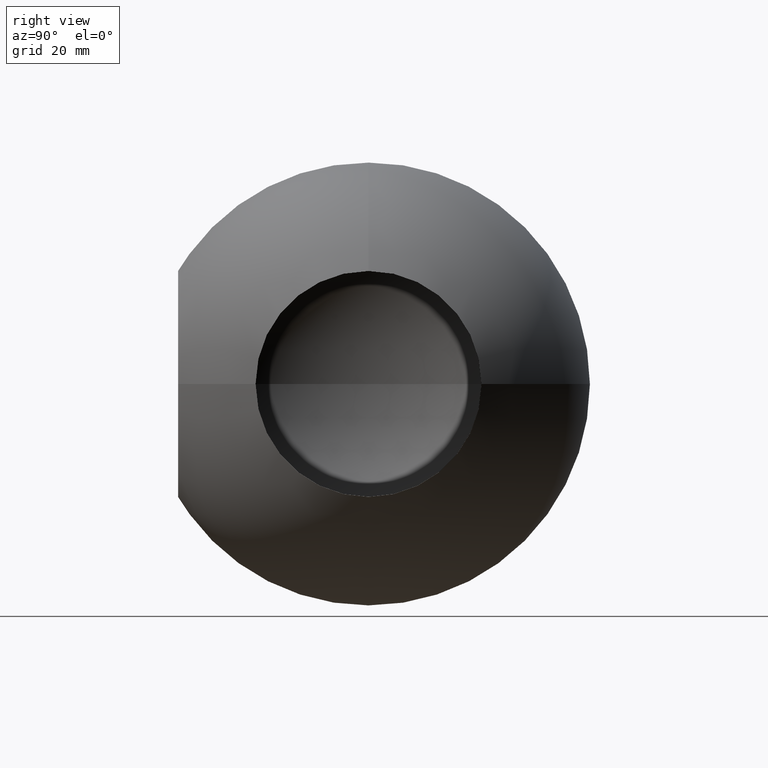
[diagram: clean part render]
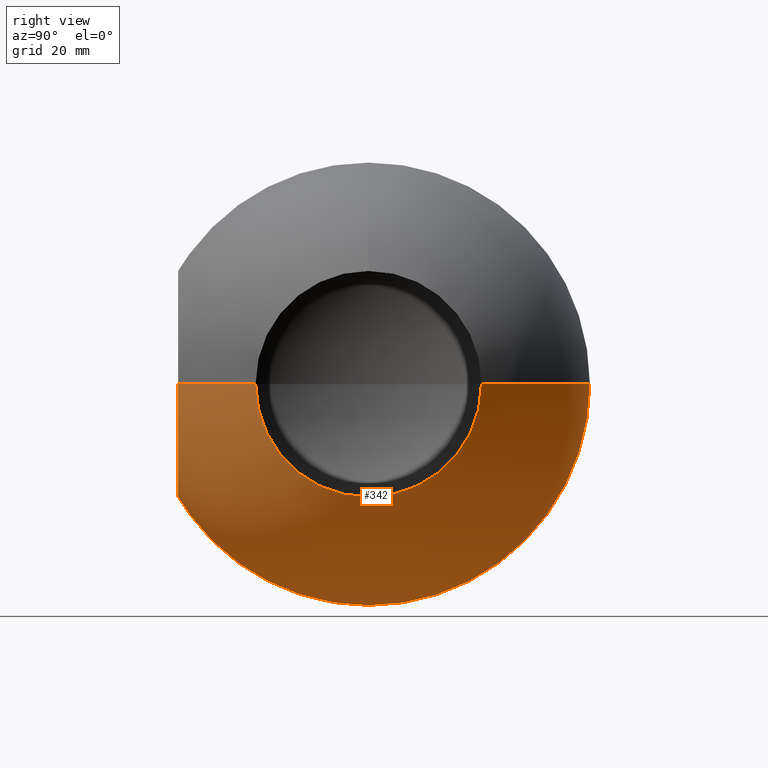
[diagram: same view with one face highlighted and labeled with its STEP entity id]
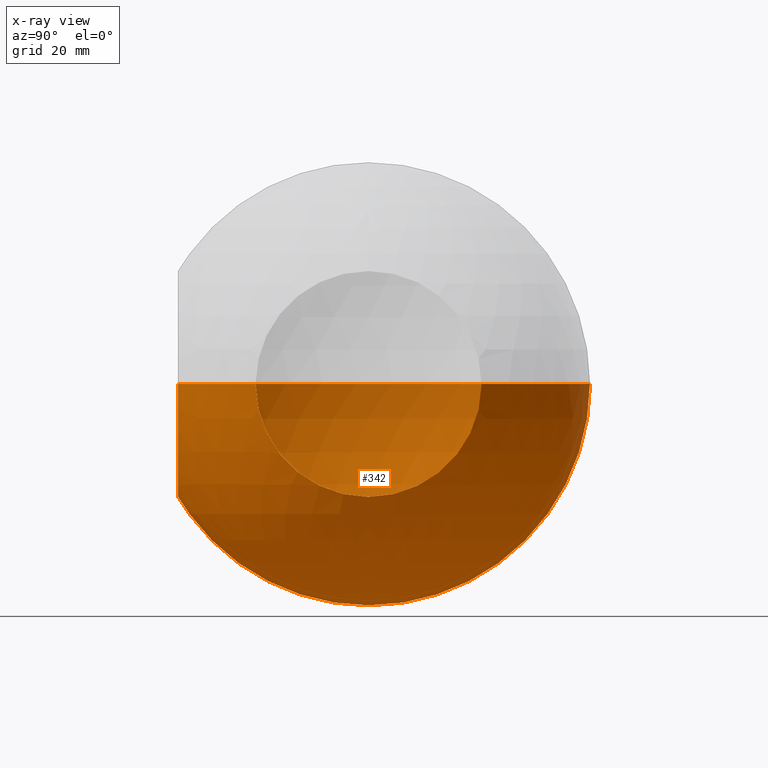
[diagram: x-ray of the same camera — body ghosted, the highlighted face saturated]
A machine part, right view. The second image highlights one B-rep face of the part: STEP entity #342.
The next image is the same camera in x-ray: the body ghosted, the highlighted face saturated — about 0% of this face is hidden behind the body in this view.
In plain terms, the highlighted spherical surface has radius 50 mm.
Its self-contained STEP definition (entity closure, byte-faithful):
#6 = EDGE_CURVE ( 'NONE', #330, #152, #119, .T. ) ;
#22 = DIRECTION ( 'NONE',  ( -1.000000000000000000, 0.0000000000000000000, -1.224646799147353200E-016 ) ) ;
#32 = VERTEX_POINT ( 'NONE', #214 ) ;
#42 = VERTEX_POINT ( 'NONE', #296 ) ;
#46 = EDGE_CURVE ( 'NONE', #32, #42, #165, .T. ) ;
#51 = DIRECTION ( 'NONE',  ( 1.000000000000000000, -0.0000000000000000000, -0.0000000000000000000 ) ) ;
#63 = AXIS2_PLACEMENT_3D ( 'NONE', #149, #90, #283 ) ;
#66 = FACE_OUTER_BOUND ( 'NONE', #345, .T. ) ;
#68 = SPHERICAL_SURFACE ( 'NONE', #268, 50.00000000000000000 ) ;
#71 = CARTESIAN_POINT ( 'NONE',  ( 0.0000000000000000000, -43.00872004605578500, -25.50000000000000000 ) ) ;
#78 = DIRECTION ( 'NONE',  ( 0.0000000000000000000, 1.000000000000000000, 0.0000000000000000000 ) ) ;
#79 = CARTESIAN_POINT ( 'NONE',  ( 43.00872004605578500, -1.387778780781445700E-014, -25.50000000000000000 ) ) ;
#86 = DIRECTION ( 'NONE',  ( 0.0000000000000000000, 0.0000000000000000000, -1.000000000000000000 ) ) ;
#90 = DIRECTION ( 'NONE',  ( 0.0000000000000000000, 0.0000000000000000000, 1.000000000000000000 ) ) ;
#92 = CIRCLE ( 'NONE', #262, 25.50000000000000000 ) ;
#94 = VERTEX_POINT ( 'NONE', #353 ) ;
#96 = CIRCLE ( 'NONE', #295, 25.50000000000000000 ) ;
#100 = DIRECTION ( 'NONE',  ( 1.000000000000000000, -0.0000000000000000000, -0.0000000000000000000 ) ) ;
#105 = CIRCLE ( 'NONE', #63, 50.00000000000000000 ) ;
#110 = DIRECTION ( 'NONE',  ( 0.0000000000000000000, 0.0000000000000000000, 1.000000000000000000 ) ) ;
#114 = ORIENTED_EDGE ( 'NONE', *, *, #348, .T. ) ;
#119 = CIRCLE ( 'NONE', #294, 25.50000000000000000 ) ;
#127 = ORIENTED_EDGE ( 'NONE', *, *, #339, .T. ) ;
#131 = AXIS2_PLACEMENT_3D ( 'NONE', #167, #143, #357 ) ;
#132 = DIRECTION ( 'NONE',  ( 0.0000000000000000000, 0.0000000000000000000, 1.000000000000000000 ) ) ;
#140 = ORIENTED_EDGE ( 'NONE', *, *, #46, .F. ) ;
#143 = DIRECTION ( 'NONE',  ( 0.0000000000000000000, 1.000000000000000000, 0.0000000000000000000 ) ) ;
#147 = ORIENTED_EDGE ( 'NONE', *, *, #198, .F. ) ;
#149 = CARTESIAN_POINT ( 'NONE',  ( 0.0000000000000000000, 0.0000000000000000000, 0.0000000000000000000 ) ) ;
#152 = VERTEX_POINT ( 'NONE', #79 ) ;
#157 = AXIS2_PLACEMENT_3D ( 'NONE', #329, #271, #220 ) ;
#165 = CIRCLE ( 'NONE', #157, 50.00000000000000000 ) ;
#167 = CARTESIAN_POINT ( 'NONE',  ( 0.0000000000000000000, -43.00872004605578500, 0.0000000000000000000 ) ) ;
#194 = DIRECTION ( 'NONE',  ( 1.000000000000000000, 0.0000000000000000000, 0.0000000000000000000 ) ) ;
#195 = DIRECTION ( 'NONE',  ( 1.224646799147353200E-016, 0.0000000000000000000, -1.000000000000000000 ) ) ;
#198 = EDGE_CURVE ( 'NONE', #152, #32, #96, .T. ) ;
#209 = CIRCLE ( 'NONE', #131, 25.50000000000000000 ) ;
#214 = CARTESIAN_POINT ( 'NONE',  ( 43.00872004605578500, 25.49999999999998900, 0.0000000000000000000 ) ) ;
#220 = DIRECTION ( 'NONE',  ( 1.000000000000000000, 0.0000000000000000000, 0.0000000000000000000 ) ) ;
#223 = CARTESIAN_POINT ( 'NONE',  ( 0.0000000000000000000, 0.0000000000000000000, 0.0000000000000000000 ) ) ;
#234 = CIRCLE ( 'NONE', #242, 50.00000000000000000 ) ;
#235 = ORIENTED_EDGE ( 'NONE', *, *, #6, .F. ) ;
#242 = AXIS2_PLACEMENT_3D ( 'NONE', #223, #195, #22 ) ;
#249 = CARTESIAN_POINT ( 'NONE',  ( 0.0000000000000000000, -43.00872004605578500, 0.0000000000000000000 ) ) ;
#256 = VERTEX_POINT ( 'NONE', #282 ) ;
#257 = EDGE_CURVE ( 'NONE', #256, #330, #105, .T. ) ;
#258 = ORIENTED_EDGE ( 'NONE', *, *, #257, .F. ) ;
#262 = AXIS2_PLACEMENT_3D ( 'NONE', #249, #78, #110 ) ;
#268 = AXIS2_PLACEMENT_3D ( 'NONE', #272, #86, #194 ) ;
#271 = DIRECTION ( 'NONE',  ( 0.0000000000000000000, 0.0000000000000000000, 1.000000000000000000 ) ) ;
#272 = CARTESIAN_POINT ( 'NONE',  ( 0.0000000000000000000, 0.0000000000000000000, 0.0000000000000000000 ) ) ;
#276 = DIRECTION ( 'NONE',  ( 0.0000000000000000000, 0.0000000000000000000, 1.000000000000000000 ) ) ;
#282 = CARTESIAN_POINT ( 'NONE',  ( 25.49999999999999600, -43.00872004605578500, 0.0000000000000000000 ) ) ;
#283 = DIRECTION ( 'NONE',  ( 1.000000000000000000, 0.0000000000000000000, 0.0000000000000000000 ) ) ;
#294 = AXIS2_PLACEMENT_3D ( 'NONE', #327, #100, #132 ) ;
#295 = AXIS2_PLACEMENT_3D ( 'NONE', #307, #51, #276 ) ;
#296 = CARTESIAN_POINT ( 'NONE',  ( 3.061616997868383000E-015, 50.00000000000000000, 0.0000000000000000000 ) ) ;
#299 = CARTESIAN_POINT ( 'NONE',  ( 43.00872004605578500, -25.50000000000000400, 0.0000000000000000000 ) ) ;
#307 = CARTESIAN_POINT ( 'NONE',  ( 43.00872004605578500, -1.387778780781445700E-014, 0.0000000000000000000 ) ) ;
#309 = VERTEX_POINT ( 'NONE', #71 ) ;
#327 = CARTESIAN_POINT ( 'NONE',  ( 43.00872004605578500, -1.387778780781445700E-014, 0.0000000000000000000 ) ) ;
#329 = CARTESIAN_POINT ( 'NONE',  ( 0.0000000000000000000, 0.0000000000000000000, 0.0000000000000000000 ) ) ;
#330 = VERTEX_POINT ( 'NONE', #299 ) ;
#333 = EDGE_CURVE ( 'NONE', #256, #309, #209, .T. ) ;
#339 = EDGE_CURVE ( 'NONE', #94, #42, #234, .T. ) ;
#342 = ADVANCED_FACE ( 'NONE', ( #66 ), #68, .T. ) ;
#343 = ORIENTED_EDGE ( 'NONE', *, *, #333, .T. ) ;
#345 = EDGE_LOOP ( 'NONE', ( #114, #127, #140, #147, #235, #258, #343 ) ) ;
#348 = EDGE_CURVE ( 'NONE', #309, #94, #92, .T. ) ;
#353 = CARTESIAN_POINT ( 'NONE',  ( -25.49999999999999600, -43.00872004605578500, -3.122849337825750200E-015 ) ) ;
#357 = DIRECTION ( 'NONE',  ( 0.0000000000000000000, 0.0000000000000000000, 1.000000000000000000 ) ) ;